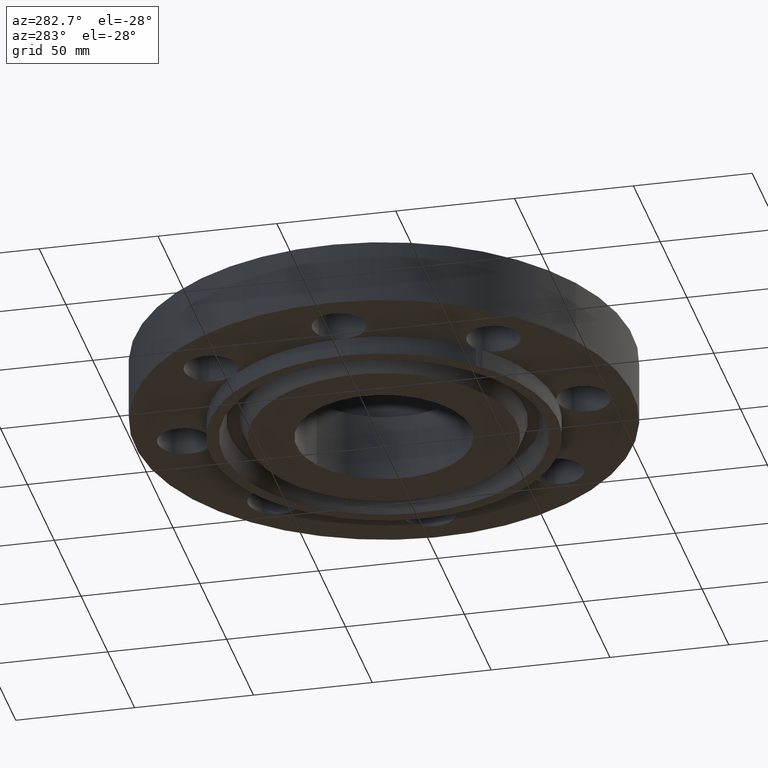
[diagram: clean part render]
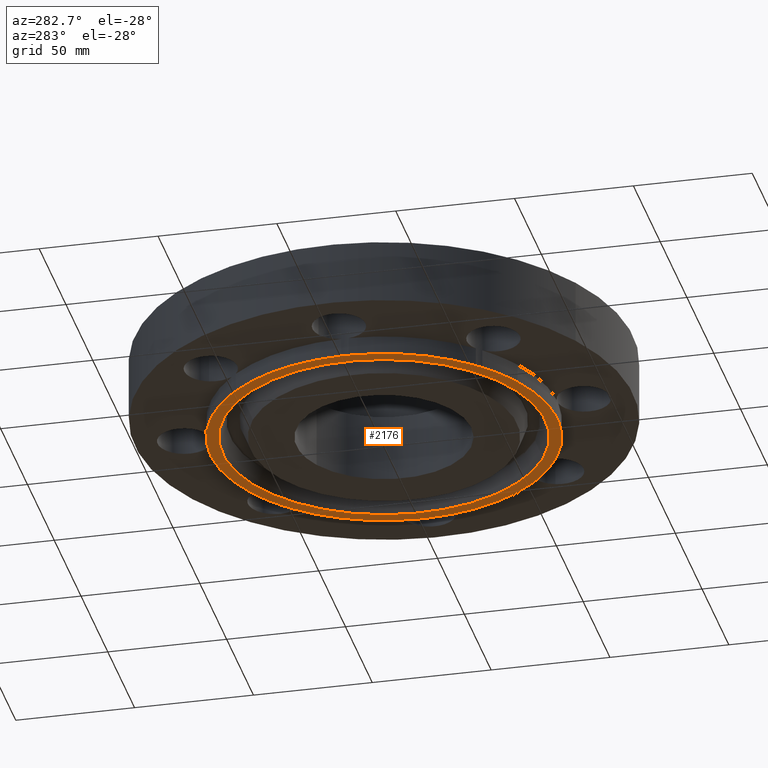
[diagram: same view with one face highlighted and labeled with its STEP entity id]
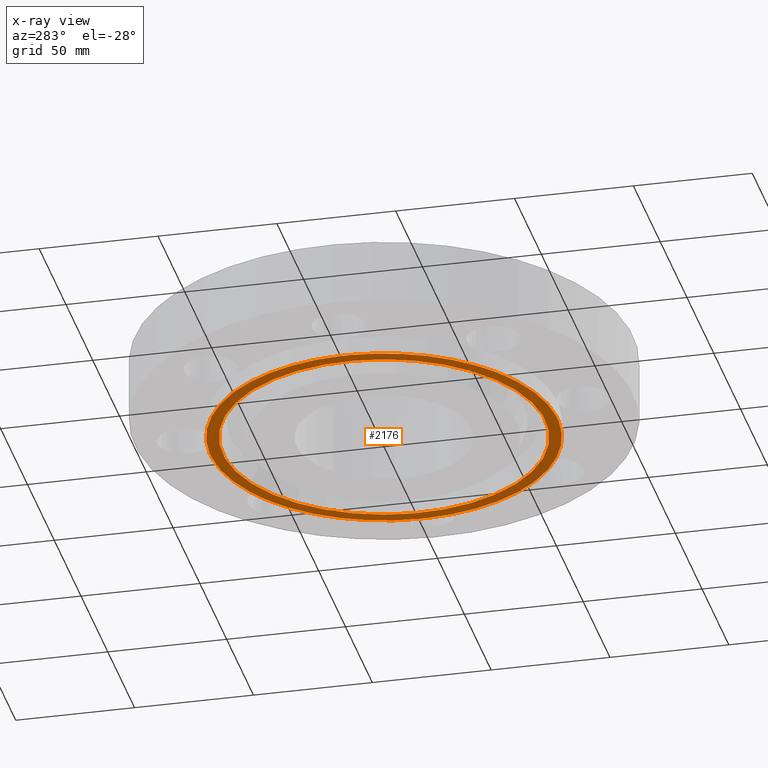
[diagram: x-ray of the same camera — body ghosted, the highlighted face saturated]
A machine part, auxiliary view. The second image highlights one B-rep face of the part: STEP entity #2176.
The next image is the same camera in x-ray: the body ghosted, the highlighted face saturated — about 0% of this face is hidden behind the body in this view.
In plain terms, the highlighted planar face has unit normal (0, 0, -1).
Its self-contained STEP definition (entity closure, byte-faithful):
#271=AXIS2_PLACEMENT_3D('Plane Axis2P3D',#268,#269,#270) ;
#1070=AXIS2_PLACEMENT_3D('Circle Axis2P3D',#1068,#1069,$) ;
#1139=AXIS2_PLACEMENT_3D('Circle Axis2P3D',#1137,#1138,$) ;
#1245=AXIS2_PLACEMENT_3D('Circle Axis2P3D',#1243,#1244,$) ;
#1345=AXIS2_PLACEMENT_3D('Circle Axis2P3D',#1343,#1344,$) ;
#1451=AXIS2_PLACEMENT_3D('Circle Axis2P3D',#1449,#1450,$) ;
#1551=AXIS2_PLACEMENT_3D('Circle Axis2P3D',#1549,#1550,$) ;
#1657=AXIS2_PLACEMENT_3D('Circle Axis2P3D',#1655,#1656,$) ;
#1757=AXIS2_PLACEMENT_3D('Circle Axis2P3D',#1755,#1756,$) ;
#1917=AXIS2_PLACEMENT_3D('Circle Axis2P3D',#1915,#1916,$) ;
#1955=AXIS2_PLACEMENT_3D('Circle Axis2P3D',#1953,#1954,$) ;
#2088=AXIS2_PLACEMENT_3D('Circle Axis2P3D',#2086,#2087,$) ;
#2107=AXIS2_PLACEMENT_3D('Circle Axis2P3D',#2105,#2106,$) ;
#2112=AXIS2_PLACEMENT_3D('Circle Axis2P3D',#2110,#2111,$) ;
#2117=AXIS2_PLACEMENT_3D('Circle Axis2P3D',#2115,#2116,$) ;
#2122=AXIS2_PLACEMENT_3D('Circle Axis2P3D',#2120,#2121,$) ;
#2129=AXIS2_PLACEMENT_3D('Circle Axis2P3D',#2127,#2128,$) ;
#2134=AXIS2_PLACEMENT_3D('Circle Axis2P3D',#2132,#2133,$) ;
#2139=AXIS2_PLACEMENT_3D('Circle Axis2P3D',#2137,#2138,$) ;
#2144=AXIS2_PLACEMENT_3D('Circle Axis2P3D',#2142,#2143,$) ;
#2149=AXIS2_PLACEMENT_3D('Circle Axis2P3D',#2147,#2148,$) ;
#268=CARTESIAN_POINT('Axis2P3D Location',(0.,1.45000000001,-0.313000000001)) ;
#1065=CARTESIAN_POINT('Vertex',(0.0616409037057,2.87433912384,-0.313000000001)) ;
#1068=CARTESIAN_POINT('Axis2P3D Location',(0.,3.31000000001,-0.312999999991)) ;
#1072=CARTESIAN_POINT('Vertex',(-0.0616409037057,2.87433912384,-0.313000000001)) ;
#1134=CARTESIAN_POINT('Vertex',(2.07605138692,1.98887798496,-0.313000000001)) ;
#1137=CARTESIAN_POINT('Axis2P3D Location',(2.34052344574,2.34052344574,-0.312999999991)) ;
#1141=CARTESIAN_POINT('Vertex',(1.98887798495,2.07605138693,-0.313000000001)) ;
#1240=CARTESIAN_POINT('Vertex',(2.87433912391,-0.0616409036986,-0.313000000001)) ;
#1243=CARTESIAN_POINT('Axis2P3D Location',(3.31000000001,2.0267904526E-016,-0.312999999991)) ;
#1247=CARTESIAN_POINT('Vertex',(2.87433912391,0.0616409037128,-0.313000000001)) ;
#1340=CARTESIAN_POINT('Vertex',(1.98887798495,-2.07605138692,-0.313000000001)) ;
#1343=CARTESIAN_POINT('Axis2P3D Location',(2.34052344574,-2.34052344574,-0.312999999991)) ;
#1347=CARTESIAN_POINT('Vertex',(2.07605138692,-1.98887798494,-0.313000000001)) ;
#1446=CARTESIAN_POINT('Vertex',(-0.0616409037057,-2.8743391239,-0.313000000001)) ;
#1449=CARTESIAN_POINT('Axis2P3D Location',(4.05358090519E-016,-3.31000000001,-0.312999999991)) ;
#1453=CARTESIAN_POINT('Vertex',(0.0616409037057,-2.8743391239,-0.313000000001)) ;
#1546=CARTESIAN_POINT('Vertex',(-2.07605138692,-1.98887798494,-0.313000000001)) ;
#1549=CARTESIAN_POINT('Axis2P3D Location',(-2.34052344574,-2.34052344574,-0.312999999991)) ;
#1553=CARTESIAN_POINT('Vertex',(-1.98887798495,-2.07605138692,-0.313000000001)) ;
#1652=CARTESIAN_POINT('Vertex',(-2.87433912391,0.0616409037128,-0.313000000001)) ;
#1655=CARTESIAN_POINT('Axis2P3D Location',(-3.31000000001,-6.08037135779E-016,-0.312999999991)) ;
#1659=CARTESIAN_POINT('Vertex',(-2.87433912391,-0.0616409036986,-0.313000000001)) ;
#1752=CARTESIAN_POINT('Vertex',(-1.98887798495,2.07605138693,-0.313000000001)) ;
#1755=CARTESIAN_POINT('Axis2P3D Location',(-2.34052344574,2.34052344574,-0.312999999991)) ;
#1759=CARTESIAN_POINT('Vertex',(-2.07605138692,1.98887798496,-0.313000000001)) ;
#1915=CARTESIAN_POINT('Axis2P3D Location',(0.,0.,-0.313)) ;
#1919=CARTESIAN_POINT('Vertex',(1.28102503915,-2.3449006054,-0.313000000001)) ;
#1921=CARTESIAN_POINT('Vertex',(-1.28102503915,2.34490060534,-0.313000000001)) ;
#1953=CARTESIAN_POINT('Axis2P3D Location',(0.,0.,-0.313)) ;
#2083=CARTESIAN_POINT('Vertex',(1.37834842346,2.52304986545,-0.313000000001)) ;
#2086=CARTESIAN_POINT('Axis2P3D Location',(0.,0.,-0.313000000026)) ;
#2105=CARTESIAN_POINT('Axis2P3D Location',(-1.10625069909E-010,-5.69209071828E-011,-0.313000000001)) ;
#2110=CARTESIAN_POINT('Axis2P3D Location',(-1.10624230686E-010,7.1054273576E-011,-0.313000000001)) ;
#2115=CARTESIAN_POINT('Axis2P3D Location',(-6.398773025E-011,1.17691892977E-010,-0.313000000001)) ;
#2120=CARTESIAN_POINT('Axis2P3D Location',(3.52003640584E-010,9.57768527654E-010,-0.313000000001)) ;
#2124=CARTESIAN_POINT('Vertex',(-1.37834842346,-2.52304986544,-0.313000000001)) ;
#2127=CARTESIAN_POINT('Axis2P3D Location',(-1.14782136551E-009,-1.34925351731E-009,-0.313000000001)) ;
#2132=CARTESIAN_POINT('Axis2P3D Location',(1.10625069909E-010,7.10545533172E-011,-0.313000000001)) ;
#2137=CARTESIAN_POINT('Axis2P3D Location',(1.10624230686E-010,-5.69206274415E-011,-0.313000000001)) ;
#2142=CARTESIAN_POINT('Axis2P3D Location',(-2.35276365319E-010,3.54887003424E-010,-0.313000000001)) ;
#2147=CARTESIAN_POINT('Axis2P3D Location',(1.14782136551E-009,1.36338716345E-009,-0.313000000001)) ;
#269=DIRECTION('Axis2P3D Direction',(0.,0.,-0.0393700787402)) ;
#270=DIRECTION('Axis2P3D XDirection',(0.0393700787402,0.,0.)) ;
#1069=DIRECTION('Axis2P3D Direction',(0.,-0.,-0.0393700787402)) ;
#1138=DIRECTION('Axis2P3D Direction',(0.,-0.,-0.0393700787402)) ;
#1244=DIRECTION('Axis2P3D Direction',(0.,-0.,-0.0393700787402)) ;
#1344=DIRECTION('Axis2P3D Direction',(-0.,0.,-0.0393700787402)) ;
#1450=DIRECTION('Axis2P3D Direction',(0.,0.,-0.0393700787402)) ;
#1550=DIRECTION('Axis2P3D Direction',(0.,0.,-0.0393700787402)) ;
#1656=DIRECTION('Axis2P3D Direction',(0.,0.,-0.0393700787402)) ;
#1756=DIRECTION('Axis2P3D Direction',(0.,0.,-0.0393700787402)) ;
#1916=DIRECTION('Axis2P3D Direction',(0.,-0.,-0.0393700787402)) ;
#1954=DIRECTION('Axis2P3D Direction',(0.,-0.,-0.0393700787402)) ;
#2087=DIRECTION('Axis2P3D Direction',(0.,0.,-0.0393700787402)) ;
#2106=DIRECTION('Axis2P3D Direction',(0.,0.,-0.0393700787402)) ;
#2111=DIRECTION('Axis2P3D Direction',(0.,0.,-0.0393700787402)) ;
#2116=DIRECTION('Axis2P3D Direction',(0.,0.,-0.0393700787402)) ;
#2121=DIRECTION('Axis2P3D Direction',(0.,0.,-0.0393700787402)) ;
#2128=DIRECTION('Axis2P3D Direction',(0.,0.,-0.0393700787402)) ;
#2133=DIRECTION('Axis2P3D Direction',(0.,0.,-0.0393700787402)) ;
#2138=DIRECTION('Axis2P3D Direction',(0.,0.,-0.0393700787402)) ;
#2143=DIRECTION('Axis2P3D Direction',(0.,0.,-0.0393700787402)) ;
#2148=DIRECTION('Axis2P3D Direction',(0.,0.,-0.0393700787402)) ;
#2153=ORIENTED_EDGE('',*,*,#2109,.T.) ;
#2154=ORIENTED_EDGE('',*,*,#1249,.F.) ;
#2155=ORIENTED_EDGE('',*,*,#2114,.T.) ;
#2156=ORIENTED_EDGE('',*,*,#1349,.F.) ;
#2157=ORIENTED_EDGE('',*,*,#2119,.T.) ;
#2158=ORIENTED_EDGE('',*,*,#1455,.F.) ;
#2159=ORIENTED_EDGE('',*,*,#2126,.T.) ;
#2160=ORIENTED_EDGE('',*,*,#2131,.T.) ;
#2161=ORIENTED_EDGE('',*,*,#1555,.F.) ;
#2162=ORIENTED_EDGE('',*,*,#2136,.T.) ;
#2163=ORIENTED_EDGE('',*,*,#1661,.F.) ;
#2164=ORIENTED_EDGE('',*,*,#2141,.T.) ;
#2165=ORIENTED_EDGE('',*,*,#1761,.F.) ;
#2166=ORIENTED_EDGE('',*,*,#2146,.T.) ;
#2167=ORIENTED_EDGE('',*,*,#1074,.F.) ;
#2168=ORIENTED_EDGE('',*,*,#2090,.T.) ;
#2169=ORIENTED_EDGE('',*,*,#2151,.T.) ;
#2170=ORIENTED_EDGE('',*,*,#1143,.F.) ;
#2173=ORIENTED_EDGE('',*,*,#1923,.F.) ;
#2174=ORIENTED_EDGE('',*,*,#1957,.F.) ;
#2175=FACE_BOUND('',#2172,.T.) ;
#2176=ADVANCED_FACE('PartBody',(#2171,#2175),#272,.T.) ;
#1071=CIRCLE('generated circle',#1070,0.440000000002) ;
#1140=CIRCLE('generated circle',#1139,0.440000000002) ;
#1246=CIRCLE('generated circle',#1245,0.440000000002) ;
#1346=CIRCLE('generated circle',#1345,0.440000000002) ;
#1452=CIRCLE('generated circle',#1451,0.440000000002) ;
#1552=CIRCLE('generated circle',#1551,0.440000000002) ;
#1658=CIRCLE('generated circle',#1657,0.440000000002) ;
#1758=CIRCLE('generated circle',#1757,0.440000000002) ;
#1918=CIRCLE('generated circle',#1917,2.67200000001) ;
#1956=CIRCLE('generated circle',#1955,2.67200000001) ;
#2089=CIRCLE('generated circle',#2088,2.87500000001) ;
#2108=CIRCLE('generated circle',#2107,2.87500000015) ;
#2113=CIRCLE('generated circle',#2112,2.87500000015) ;
#2118=CIRCLE('generated circle',#2117,2.87500000015) ;
#2123=CIRCLE('generated circle',#2122,2.875000001) ;
#2130=CIRCLE('generated circle',#2129,2.87499999826) ;
#2135=CIRCLE('generated circle',#2134,2.87500000015) ;
#2140=CIRCLE('generated circle',#2139,2.87500000015) ;
#2145=CIRCLE('generated circle',#2144,2.87499999962) ;
#2150=CIRCLE('generated circle',#2149,2.87499999826) ;
#1074=EDGE_CURVE('',#1066,#1073,#1071,.T.) ;
#1143=EDGE_CURVE('',#1135,#1142,#1140,.T.) ;
#1249=EDGE_CURVE('',#1241,#1248,#1246,.T.) ;
#1349=EDGE_CURVE('',#1341,#1348,#1346,.T.) ;
#1455=EDGE_CURVE('',#1447,#1454,#1452,.T.) ;
#1555=EDGE_CURVE('',#1547,#1554,#1552,.T.) ;
#1661=EDGE_CURVE('',#1653,#1660,#1658,.T.) ;
#1761=EDGE_CURVE('',#1753,#1760,#1758,.T.) ;
#1923=EDGE_CURVE('',#1920,#1922,#1918,.T.) ;
#1957=EDGE_CURVE('',#1922,#1920,#1956,.T.) ;
#2090=EDGE_CURVE('',#1066,#2084,#2089,.T.) ;
#2109=EDGE_CURVE('',#1135,#1248,#2108,.T.) ;
#2114=EDGE_CURVE('',#1241,#1348,#2113,.T.) ;
#2119=EDGE_CURVE('',#1341,#1454,#2118,.T.) ;
#2126=EDGE_CURVE('',#1447,#2125,#2123,.T.) ;
#2131=EDGE_CURVE('',#2125,#1554,#2130,.T.) ;
#2136=EDGE_CURVE('',#1547,#1660,#2135,.T.) ;
#2141=EDGE_CURVE('',#1653,#1760,#2140,.T.) ;
#2146=EDGE_CURVE('',#1753,#1073,#2145,.T.) ;
#2151=EDGE_CURVE('',#2084,#1142,#2150,.T.) ;
#2152=EDGE_LOOP('',(#2153,#2154,#2155,#2156,#2157,#2158,#2159,#2160,#2161,#2162,#2163,#2164,#2165,#2166,#2167,#2168,#2169,#2170)) ;
#2172=EDGE_LOOP('',(#2173,#2174)) ;
#2171=FACE_OUTER_BOUND('',#2152,.T.) ;
#272=PLANE('',#271) ;
#1066=VERTEX_POINT('',#1065) ;
#1073=VERTEX_POINT('',#1072) ;
#1135=VERTEX_POINT('',#1134) ;
#1142=VERTEX_POINT('',#1141) ;
#1241=VERTEX_POINT('',#1240) ;
#1248=VERTEX_POINT('',#1247) ;
#1341=VERTEX_POINT('',#1340) ;
#1348=VERTEX_POINT('',#1347) ;
#1447=VERTEX_POINT('',#1446) ;
#1454=VERTEX_POINT('',#1453) ;
#1547=VERTEX_POINT('',#1546) ;
#1554=VERTEX_POINT('',#1553) ;
#1653=VERTEX_POINT('',#1652) ;
#1660=VERTEX_POINT('',#1659) ;
#1753=VERTEX_POINT('',#1752) ;
#1760=VERTEX_POINT('',#1759) ;
#1920=VERTEX_POINT('',#1919) ;
#1922=VERTEX_POINT('',#1921) ;
#2084=VERTEX_POINT('',#2083) ;
#2125=VERTEX_POINT('',#2124) ;